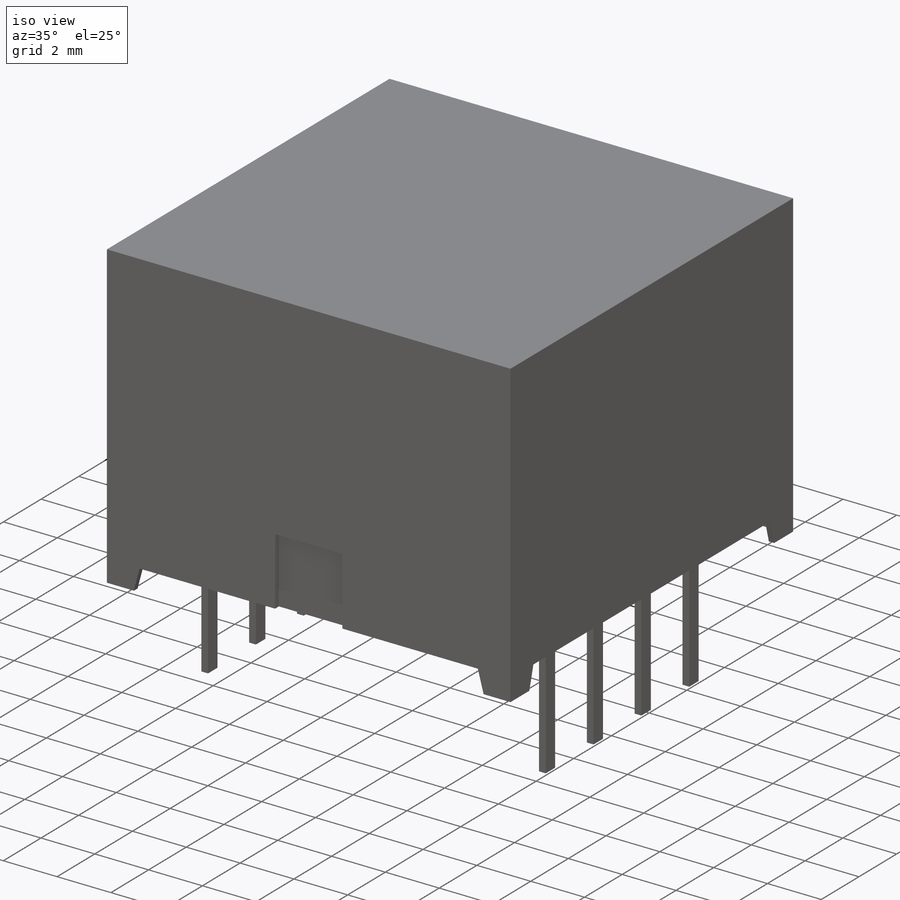
[diagram: iso view]
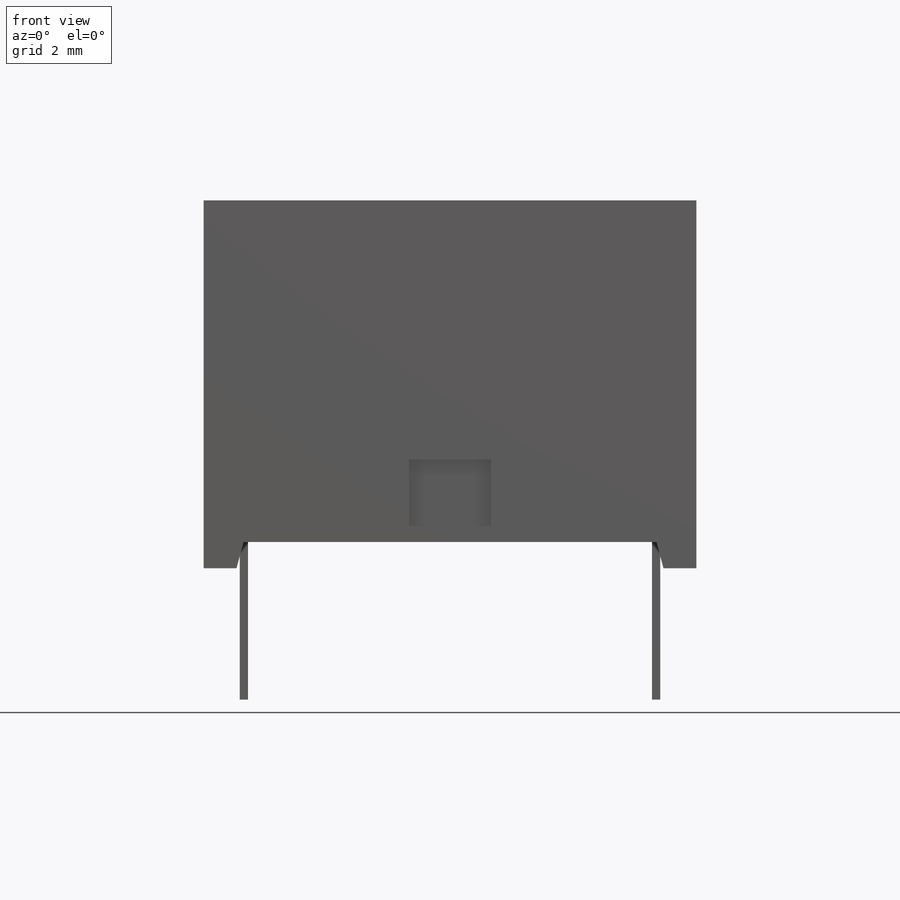
[diagram: front view]
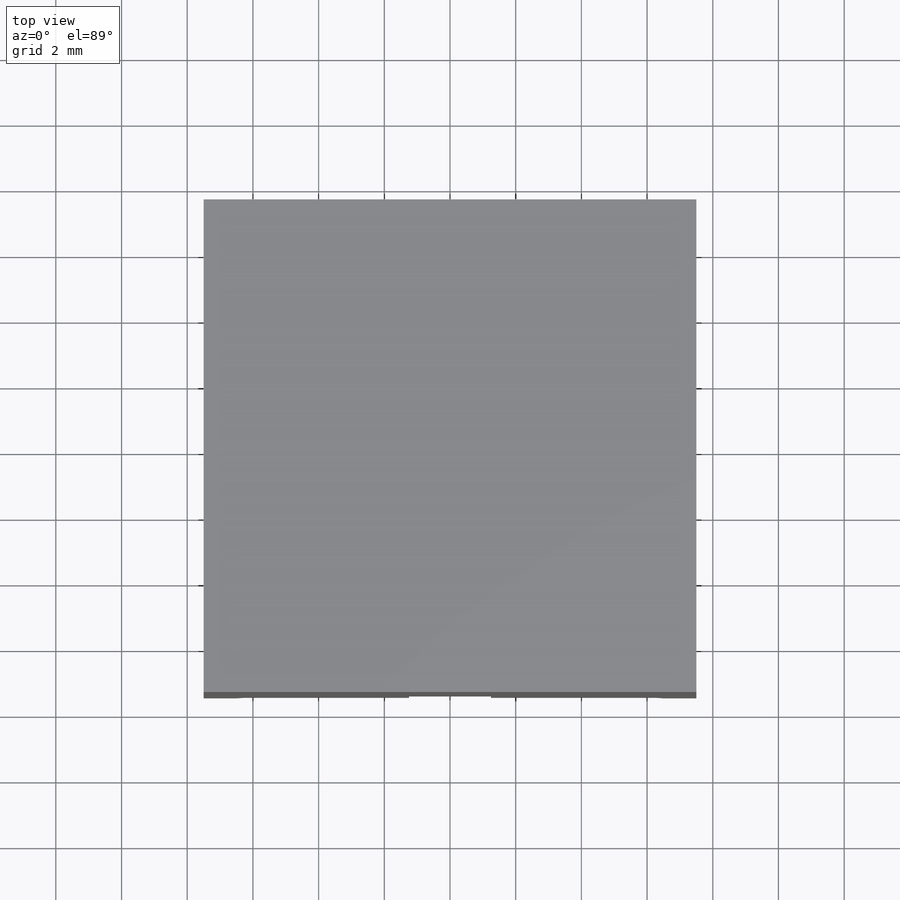
[diagram: top view]
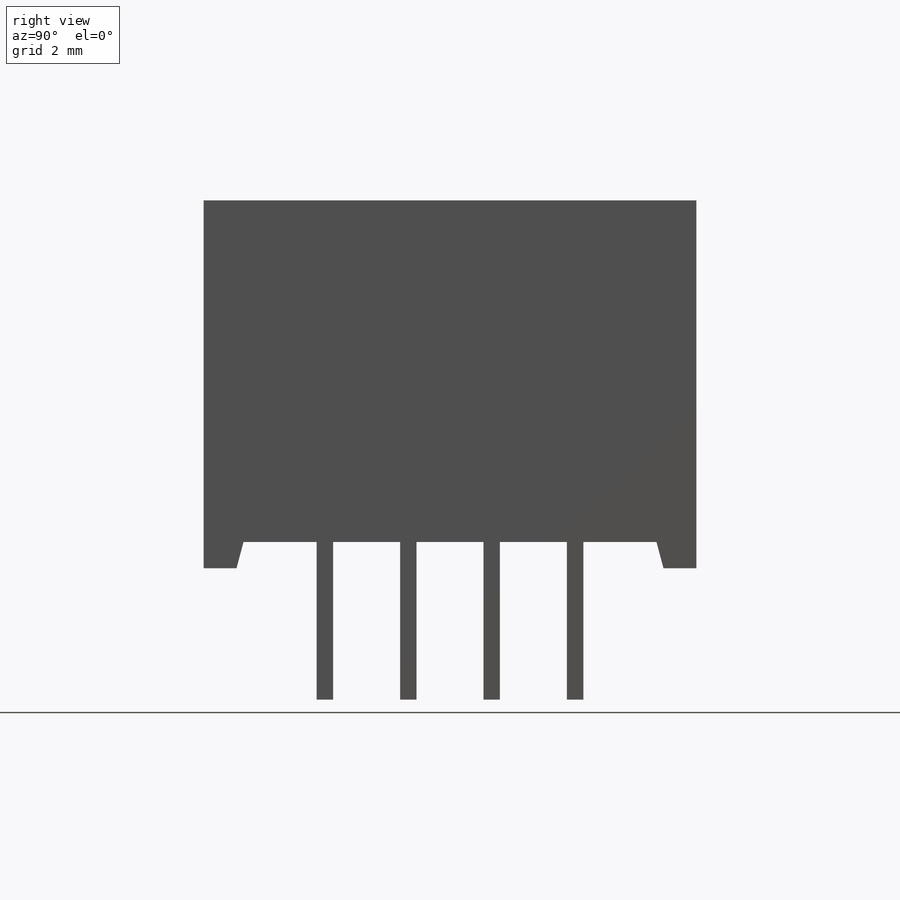
[diagram: right view]
SOLIDWORKS PART (.sldprt)
format: sldprt  version: not decoded by parser v0  size: 893,440 bytes
history: native  units: mm
features: sketch x9, cut_extrude x5, extrude x4, material x1 (+12 scaffold rows collapsed)
feature tree (31):
  scaffold x12  (default folders/planes/origin — collapsed)
  material  "Material <not specified>"
  sketch  "Sketch1"  dims[c1.D1=15.0mm c1.D2=11.2mm c1.D3=0.8mm c1.D4=1.0mm c1.D5=1.0mm c2.D4=1.0mm c2.D6=0.8mm c3.D6=105.0deg c3.D7=0.8mm c3.D5=1.0mm c4.D7=0.8mm c5.D7=105.0deg]
  extrude  "Extrude1"  Depth=15mm
  sketch  "Sketch2"  dims[c1.D1=2.0mm c1.D2=2.0mm c2.D1=2.54mm c2.D3=2.54mm c2.D4=2.54mm c2.D5=2.54mm c2.D6=2.54mm c2.D7=2.54mm c2.D8=2.54mm c2.D9=2.54mm c2.D10=2.54mm c2.D11=2.54mm c3.D1=0.8mm c3.D2=0.8mm]
  sketch  "Sketch3"  dims[c1.D1=0.8mm c1.D2=1.0mm c1.D3=1.0mm c2.D2=1.0mm c2.D3=1.0mm c2.D4=0.8mm c3.D4=105.0deg c3.D5=0.8mm c4.D5=105.0deg]
  cut_extrude  "Cut-Extrude1"  [1 undecoded]
  cut_extrude  "Cut-Extrude2"  [1 undecoded]
  sketch  "Sketch4"  dims[c1.D9=0.5mm c1.D1=2.54mm c1.D2=2.54mm c1.D3=2.54mm c1.D4=0.5mm c1.D5=0.5mm c1.D6=2.54mm c1.D7=2.54mm c1.D8=7.62mm c2.D1=2.54mm c2.D2=2.54mm c2.D3=2.54mm c2.D4=2.54mm c2.D5=2.54mm c2.D6=12.55mm c2.D7=0.2mm c2.D8=0.2mm c3.D3=2.54mm c3.D1=0.5mm c3.D2=0.25mm c4.D3=2.54mm c4.D4=2.54mm c4.D5=2.54mm c4.D6=12.55mm]
  extrude  "Extrude2"  [1 undecoded]
  extrude  "Extrude3"  [1 undecoded]
  sketch  "Sketch4<3>"  dims[D1=4.0mm]
  cut_extrude  "Cut-Extrude3"  [1 undecoded]
  sketch  "Sketch4<4>"
  extrude  "Extrude4"  [1 undecoded]
  sketch  "Sketch2<3>"
  sketch  "Sketch5"  dims[D1=2.5mm D2=2.5mm]
  cut_extrude  "Cut-Extrude4"  Depth=0.2mm
  sketch  "Sketch6"
  cut_extrude  "Cut-Extrude5"  Depth=0.01mm
decode coverage: 9 of 18 modeling features carry decoded parameters
note: 6 parameter values undecoded
summary: no parameter record found for 6 features
note: suppression state not decoded; provenance and decode notes live in map.json
